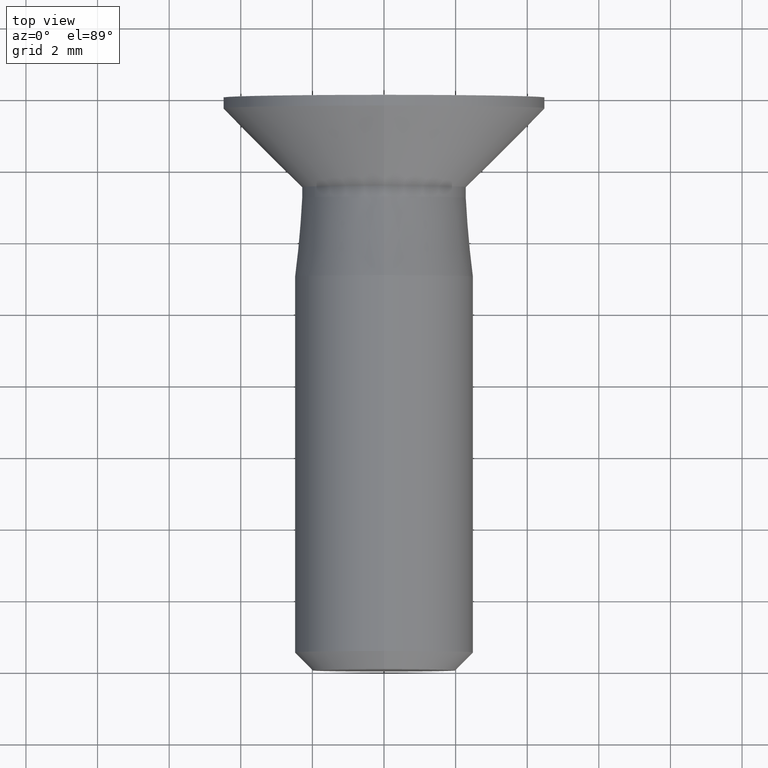
[diagram: clean part render]
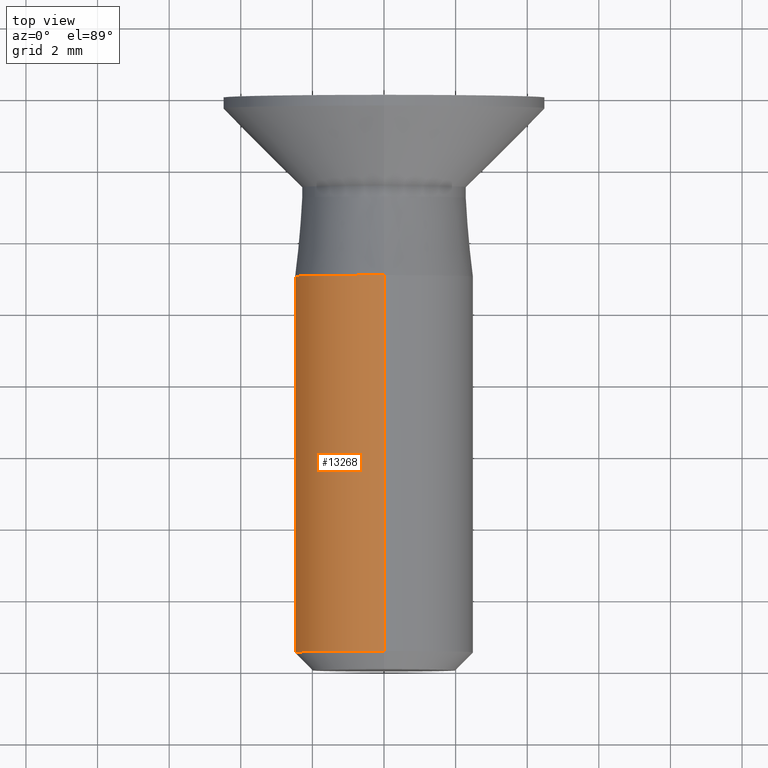
[diagram: same view with one face highlighted and labeled with its STEP entity id]
A machine part, top view. The second image highlights one B-rep face of the part: STEP entity #13268.
In plain terms, the highlighted cylindrical surface (partial cylindrical patch) has radius 2.5 mm, axis along (-0, -1, -0).
Its self-contained STEP definition (entity closure, byte-faithful):
#678 = DIRECTION ( 'NONE',  ( 0.000000000000000000, 0.000000000000000000, -1.000000000000000000 ) ) ;
#789 = LINE ( 'NONE', #9346, #13642 ) ;
#1936 = CARTESIAN_POINT ( 'NONE',  ( 0.000000000000000000, 11.00000000000000000, -2.499999999999999112 ) ) ;
#2227 = VERTEX_POINT ( 'NONE', #13446 ) ;
#2272 = DIRECTION ( 'NONE',  ( -0.000000000000000000, -1.000000000000000000, -0.000000000000000000 ) ) ;
#2345 = CARTESIAN_POINT ( 'NONE',  ( 3.061616997868383634E-16, 0.000000000000000000, 2.500000000000000444 ) ) ;
#3128 = ORIENTED_EDGE ( 'NONE', *, *, #9099, .F. ) ;
#3791 = ORIENTED_EDGE ( 'NONE', *, *, #8567, .T. ) ;
#3860 = AXIS2_PLACEMENT_3D ( 'NONE', #12064, #13313, #678 ) ;
#4080 = FACE_OUTER_BOUND ( 'NONE', #10788, .T. ) ;
#4467 = DIRECTION ( 'NONE',  ( -0.000000000000000000, -1.000000000000000000, -0.000000000000000000 ) ) ;
#5458 = ORIENTED_EDGE ( 'NONE', *, *, #5758, .T. ) ;
#5735 = LINE ( 'NONE', #2345, #10919 ) ;
#5758 = EDGE_CURVE ( 'NONE', #10551, #2227, #789, .T. ) ;
#6403 = DIRECTION ( 'NONE',  ( 0.000000000000000000, 1.000000000000000000, 0.000000000000000000 ) ) ;
#6781 = DIRECTION ( 'NONE',  ( 0.000000000000000000, 0.000000000000000000, -1.000000000000000000 ) ) ;
#7351 = EDGE_CURVE ( 'NONE', #2227, #8862, #8259, .T. ) ;
#7532 = CIRCLE ( 'NONE', #9518, 2.499999999999999112 ) ;
#7933 = VERTEX_POINT ( 'NONE', #13831 ) ;
#8259 = CIRCLE ( 'NONE', #8867, 2.500000000000000444 ) ;
#8567 = EDGE_CURVE ( 'NONE', #7933, #10551, #7532, .T. ) ;
#8728 = CYLINDRICAL_SURFACE ( 'NONE', #3860, 2.500000000000000444 ) ;
#8862 = VERTEX_POINT ( 'NONE', #12809 ) ;
#8867 = AXIS2_PLACEMENT_3D ( 'NONE', #10996, #6403, #9787 ) ;
#9099 = EDGE_CURVE ( 'NONE', #7933, #8862, #5735, .T. ) ;
#9195 = ORIENTED_EDGE ( 'NONE', *, *, #7351, .T. ) ;
#9346 = CARTESIAN_POINT ( 'NONE',  ( 0.000000000000000000, 0.000000000000000000, -2.500000000000000444 ) ) ;
#9518 = AXIS2_PLACEMENT_3D ( 'NONE', #14463, #2272, #6781 ) ;
#9787 = DIRECTION ( 'NONE',  ( 0.000000000000000000, 0.000000000000000000, -1.000000000000000000 ) ) ;
#10551 = VERTEX_POINT ( 'NONE', #1936 ) ;
#10788 = EDGE_LOOP ( 'NONE', ( #3128, #3791, #5458, #9195 ) ) ;
#10919 = VECTOR ( 'NONE', #4467, 1000.000000000000000 ) ;
#10996 = CARTESIAN_POINT ( 'NONE',  ( 0.000000000000000000, 0.5000000000000004441, 0.000000000000000000 ) ) ;
#12064 = CARTESIAN_POINT ( 'NONE',  ( 0.000000000000000000, 0.000000000000000000, 0.000000000000000000 ) ) ;
#12809 = CARTESIAN_POINT ( 'NONE',  ( 3.061616997868383634E-16, 0.5000000000000004441, 2.500000000000000444 ) ) ;
#13268 = ADVANCED_FACE ( 'NONE', ( #4080 ), #8728, .T. ) ;
#13313 = DIRECTION ( 'NONE',  ( -0.000000000000000000, -1.000000000000000000, -0.000000000000000000 ) ) ;
#13446 = CARTESIAN_POINT ( 'NONE',  ( 0.000000000000000000, 0.5000000000000004441, -2.500000000000000444 ) ) ;
#13642 = VECTOR ( 'NONE', #13834, 1000.000000000000000 ) ;
#13831 = CARTESIAN_POINT ( 'NONE',  ( 3.061616997868382155E-16, 11.00000000000000000, 2.499999999999999112 ) ) ;
#13834 = DIRECTION ( 'NONE',  ( -0.000000000000000000, -1.000000000000000000, -0.000000000000000000 ) ) ;
#14463 = CARTESIAN_POINT ( 'NONE',  ( 0.000000000000000000, 11.00000000000000000, 0.000000000000000000 ) ) ;